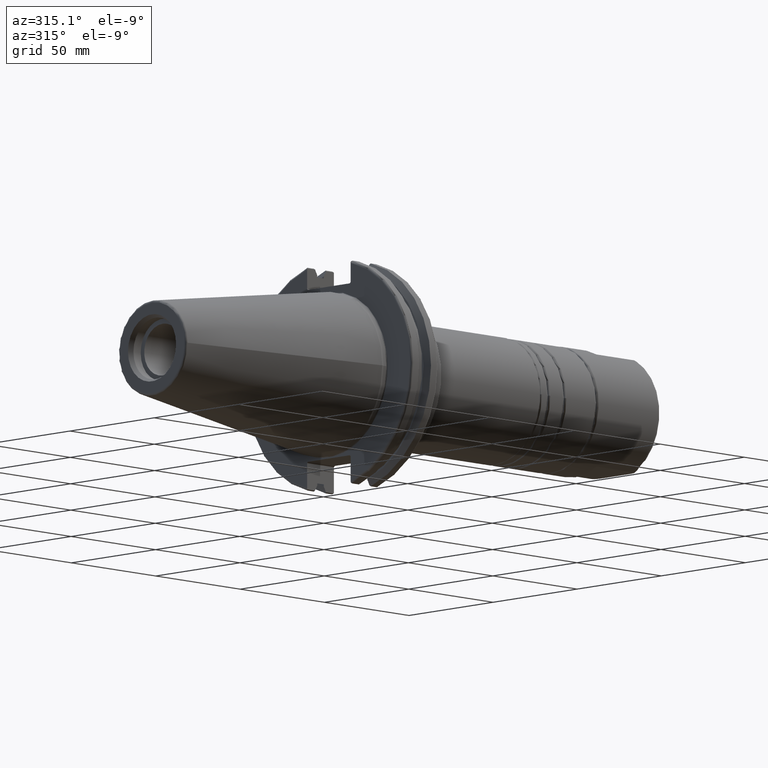
[diagram: clean part render]
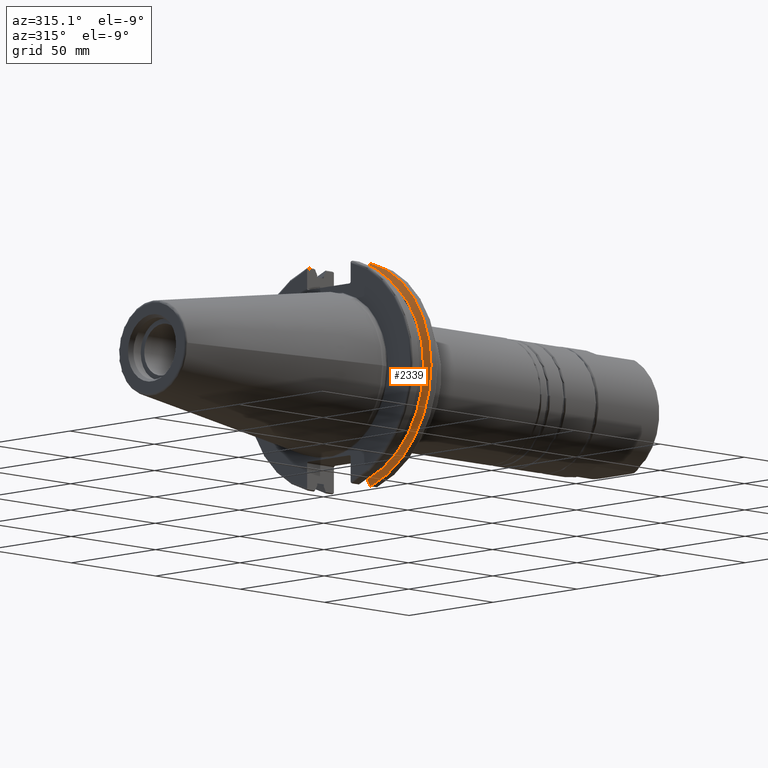
[diagram: same view with one face highlighted and labeled with its STEP entity id]
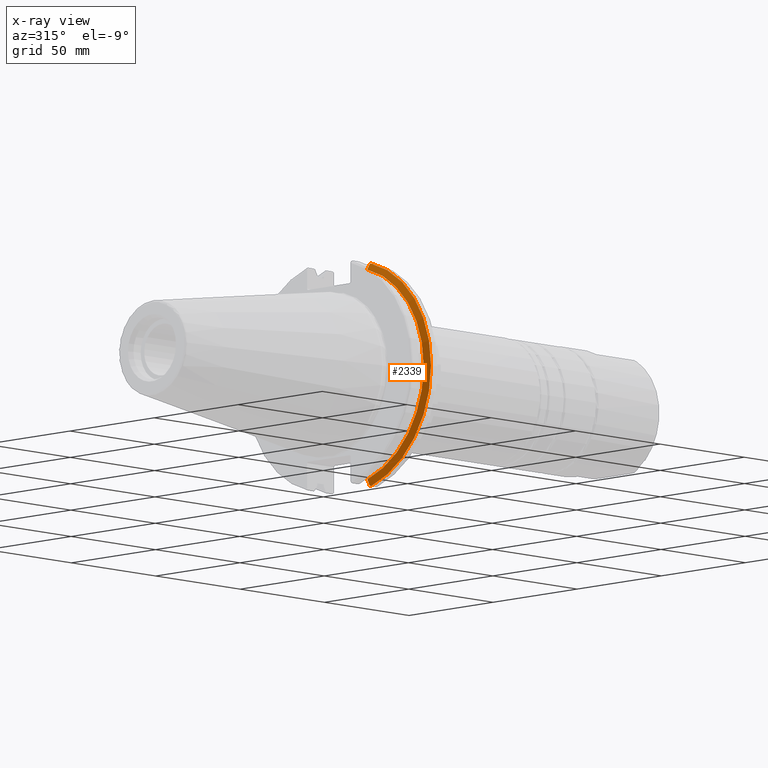
[diagram: x-ray of the same camera — body ghosted, the highlighted face saturated]
A machine part, auxiliary view. The second image highlights one B-rep face of the part: STEP entity #2339.
The next image is the same camera in x-ray: the body ghosted, the highlighted face saturated — about 0% of this face is hidden behind the body in this view.
In plain terms, the highlighted conical surface has half-angle 60 deg.
Its self-contained STEP definition (entity closure, byte-faithful):
#519=(
BOUNDED_CURVE()
B_SPLINE_CURVE(2,(#3969,#3970,#3971),.UNSPECIFIED.,.F.,.F.)
B_SPLINE_CURVE_WITH_KNOTS((3,3),(0.0558332664529572,0.331657177124506),
 .UNSPECIFIED.)
CURVE()
GEOMETRIC_REPRESENTATION_ITEM()
RATIONAL_B_SPLINE_CURVE((1.00012873636816,1.00038235574567,1.))
REPRESENTATION_ITEM('')
);
#520=(
BOUNDED_CURVE()
B_SPLINE_CURVE(2,(#3977,#3978,#3979),.UNSPECIFIED.,.F.,.F.)
B_SPLINE_CURVE_WITH_KNOTS((3,3),(0.,0.27582391067293),.UNSPECIFIED.)
CURVE()
GEOMETRIC_REPRESENTATION_ITEM()
RATIONAL_B_SPLINE_CURVE((1.,1.00038235573837,1.00012873636569))
REPRESENTATION_ITEM('')
);
#527=(
BOUNDED_CURVE()
B_SPLINE_CURVE(2,(#4112,#4113,#4114),.UNSPECIFIED.,.F.,.F.)
B_SPLINE_CURVE_WITH_KNOTS((3,3),(0.,0.0648240472897573),.UNSPECIFIED.)
CURVE()
GEOMETRIC_REPRESENTATION_ITEM()
RATIONAL_B_SPLINE_CURVE((1.,1.00011477674842,1.00019140645957))
REPRESENTATION_ITEM('')
);
#528=(
BOUNDED_CURVE()
B_SPLINE_CURVE(2,(#4128,#4129,#4130),.UNSPECIFIED.,.F.,.F.)
B_SPLINE_CURVE_WITH_KNOTS((3,3),(0.325260944932533,0.390084992222205),
 .UNSPECIFIED.)
CURVE()
GEOMETRIC_REPRESENTATION_ITEM()
RATIONAL_B_SPLINE_CURVE((1.00019140646005,1.0001147767487,1.))
REPRESENTATION_ITEM('')
);
#549=CONICAL_SURFACE('',#2688,47.8172386482472,1.0471975511966);
#609=CIRCLE('',#2682,49.2125);
#612=CIRCLE('',#2689,46.4219772964944);
#783=FACE_OUTER_BOUND('',#903,.T.);
#903=EDGE_LOOP('',(#1935,#1936,#1937,#1938,#1939,#1940));
#1314=VERTEX_POINT('',#3966);
#1315=VERTEX_POINT('',#3968);
#1316=VERTEX_POINT('',#3974);
#1317=VERTEX_POINT('',#3976);
#1342=VERTEX_POINT('',#4110);
#1343=VERTEX_POINT('',#4116);
#1513=EDGE_CURVE('',#1315,#1314,#519,.T.);
#1516=EDGE_CURVE('',#1317,#1316,#520,.T.);
#1558=EDGE_CURVE('',#1342,#1316,#527,.T.);
#1560=EDGE_CURVE('',#1343,#1342,#609,.T.);
#1565=EDGE_CURVE('',#1315,#1343,#528,.T.);
#1566=EDGE_CURVE('',#1314,#1317,#612,.T.);
#1935=ORIENTED_EDGE('',*,*,#1558,.F.);
#1936=ORIENTED_EDGE('',*,*,#1560,.F.);
#1937=ORIENTED_EDGE('',*,*,#1565,.F.);
#1938=ORIENTED_EDGE('',*,*,#1513,.T.);
#1939=ORIENTED_EDGE('',*,*,#1566,.T.);
#1940=ORIENTED_EDGE('',*,*,#1516,.T.);
#2339=ADVANCED_FACE('',(#783),#549,.T.);
#2682=AXIS2_PLACEMENT_3D('',#4118,#3149,#3150);
#2688=AXIS2_PLACEMENT_3D('',#4131,#3163,#3164);
#2689=AXIS2_PLACEMENT_3D('',#4132,#3165,#3166);
#3149=DIRECTION('center_axis',(1.,0.,0.));
#3150=DIRECTION('ref_axis',(0.,0.,-1.));
#3163=DIRECTION('center_axis',(1.,0.,0.));
#3164=DIRECTION('ref_axis',(0.,-1.,-1.22464679914735E-16));
#3165=DIRECTION('center_axis',(1.,0.,0.));
#3166=DIRECTION('ref_axis',(0.,0.,-1.));
#3966=CARTESIAN_POINT('',(13.0423,-12.95,44.5791147973604));
#3968=CARTESIAN_POINT('',(14.3750103943757,-12.95,46.9780755322918));
#3969=CARTESIAN_POINT('Ctrl Pts',(14.3750103943757,-12.95,46.9780755322917));
#3970=CARTESIAN_POINT('Ctrl Pts',(13.6911955094858,-12.95,45.7494966802945));
#3971=CARTESIAN_POINT('Ctrl Pts',(13.0423,-12.95,44.5791147973604));
#3974=CARTESIAN_POINT('',(14.3750103943757,-12.95,-46.9780755322917));
#3976=CARTESIAN_POINT('',(13.0423,-12.95,-44.5791147973604));
#3977=CARTESIAN_POINT('Ctrl Pts',(13.0423,-12.95,-44.5791147973604));
#3978=CARTESIAN_POINT('Ctrl Pts',(13.6911955094637,-12.95,-45.7494966802549));
#3979=CARTESIAN_POINT('Ctrl Pts',(14.3750103943757,-12.95,-46.9780755322917));
#4110=CARTESIAN_POINT('',(14.6534090340487,-13.4317035994433,-47.3440544806494));
#4112=CARTESIAN_POINT('Ctrl Pts',(14.6534090340487,-13.4317035994433,-47.3440544806494));
#4113=CARTESIAN_POINT('Ctrl Pts',(14.5131310333618,-13.1896660169966,-47.1601640966264));
#4114=CARTESIAN_POINT('Ctrl Pts',(14.3750103943757,-12.95,-46.9780755322917));
#4116=CARTESIAN_POINT('',(14.6534090340487,-13.4317035994433,47.3440544806494));
#4118=CARTESIAN_POINT('Origin',(14.6534090340487,0.,0.));
#4128=CARTESIAN_POINT('Ctrl Pts',(14.3750103943757,-12.95,46.9780755322918));
#4129=CARTESIAN_POINT('Ctrl Pts',(14.5131310333617,-13.1896660169965,47.1601640966263));
#4130=CARTESIAN_POINT('Ctrl Pts',(14.6534090340487,-13.4317035994433,47.3440544806494));
#4131=CARTESIAN_POINT('Origin',(13.8478545170244,0.,0.));
#4132=CARTESIAN_POINT('Origin',(13.0423,0.,0.));